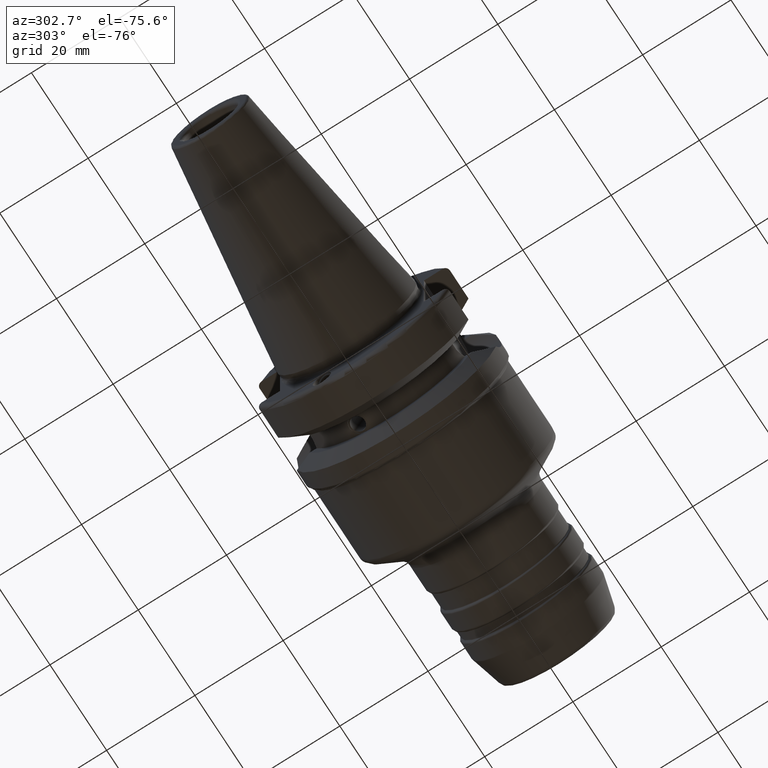
[diagram: clean part render]
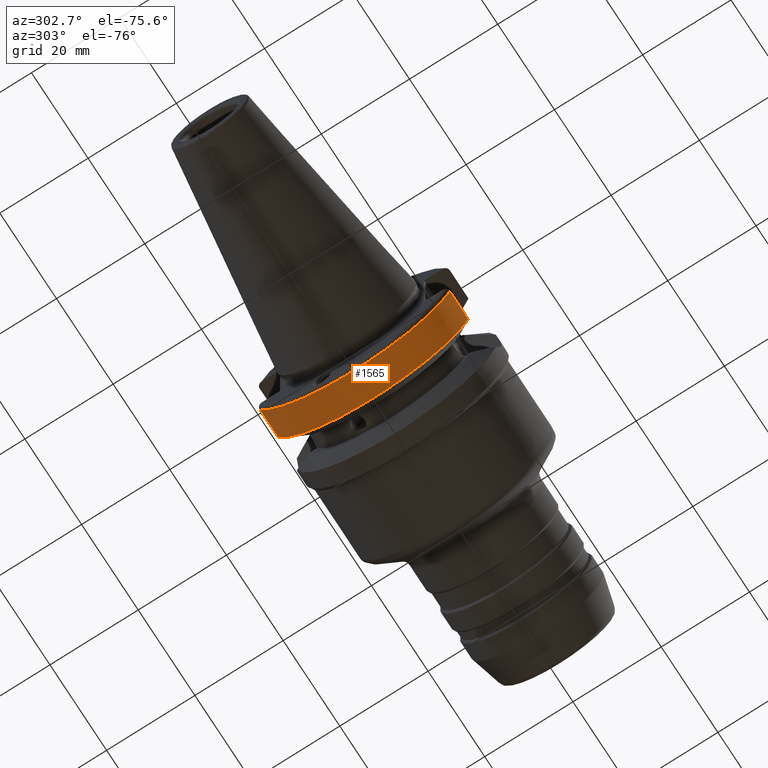
[diagram: same view with one face highlighted and labeled with its STEP entity id]
A machine part, auxiliary view. The second image highlights one B-rep face of the part: STEP entity #1565.
In plain terms, the highlighted cylindrical surface (partial cylindrical patch) has radius 23 mm, axis along (1, 0, 0).
Its self-contained STEP definition (entity closure, byte-faithful):
#171=LINE('',#2968,#246);
#178=LINE('',#3023,#253);
#246=VECTOR('',#2213,10.);
#253=VECTOR('',#2250,10.);
#299=CYLINDRICAL_SURFACE('',#1787,23.);
#377=FACE_OUTER_BOUND('',#481,.T.);
#481=EDGE_LOOP('',(#1351,#1352,#1353,#1354));
#591=CIRCLE('',#1786,23.);
#592=CIRCLE('',#1788,23.);
#730=VERTEX_POINT('',#2952);
#731=VERTEX_POINT('',#2957);
#739=VERTEX_POINT('',#3010);
#741=VERTEX_POINT('',#3021);
#939=EDGE_CURVE('',#730,#731,#171,.T.);
#954=EDGE_CURVE('',#730,#739,#591,.T.);
#957=EDGE_CURVE('',#731,#741,#592,.T.);
#958=EDGE_CURVE('',#741,#739,#178,.T.);
#1351=ORIENTED_EDGE('',*,*,#939,.T.);
#1352=ORIENTED_EDGE('',*,*,#957,.T.);
#1353=ORIENTED_EDGE('',*,*,#958,.T.);
#1354=ORIENTED_EDGE('',*,*,#954,.F.);
#1565=ADVANCED_FACE('',(#377),#299,.T.);
#1786=AXIS2_PLACEMENT_3D('',#3011,#2244,#2245);
#1787=AXIS2_PLACEMENT_3D('',#3020,#2246,#2247);
#1788=AXIS2_PLACEMENT_3D('',#3022,#2248,#2249);
#2213=DIRECTION('',(-1.,-1.62798202122572E-21,0.));
#2244=DIRECTION('center_axis',(1.,1.62798202122572E-21,0.));
#2245=DIRECTION('ref_axis',(0.,0.,-1.));
#2246=DIRECTION('center_axis',(1.,1.62798202122572E-21,0.));
#2247=DIRECTION('ref_axis',(0.,1.,0.));
#2248=DIRECTION('center_axis',(1.,1.62798202122572E-21,0.));
#2249=DIRECTION('ref_axis',(0.,0.,-1.));
#2250=DIRECTION('',(1.,1.62798202122572E-21,0.));
#2952=CARTESIAN_POINT('',(9.57005904049381,-21.5452430944744,-8.05));
#2957=CARTESIAN_POINT('',(2.99999999999999,-21.5452430944745,-8.05));
#2968=CARTESIAN_POINT('',(6.2850295202469,-21.5452430944745,-8.05));
#3010=CARTESIAN_POINT('',(9.57005904049381,21.5452430944744,-8.05));
#3011=CARTESIAN_POINT('Origin',(9.57005904049381,2.08175114951191E-15,0.));
#3020=CARTESIAN_POINT('Origin',(6.2850295202469,2.08174580154291E-15,0.));
#3021=CARTESIAN_POINT('',(2.99999999999999,21.5452430944745,-8.05));
#3022=CARTESIAN_POINT('Origin',(2.99999999999999,2.08174045357391E-15,0.));
#3023=CARTESIAN_POINT('',(6.2850295202469,21.5452430944745,-8.05));